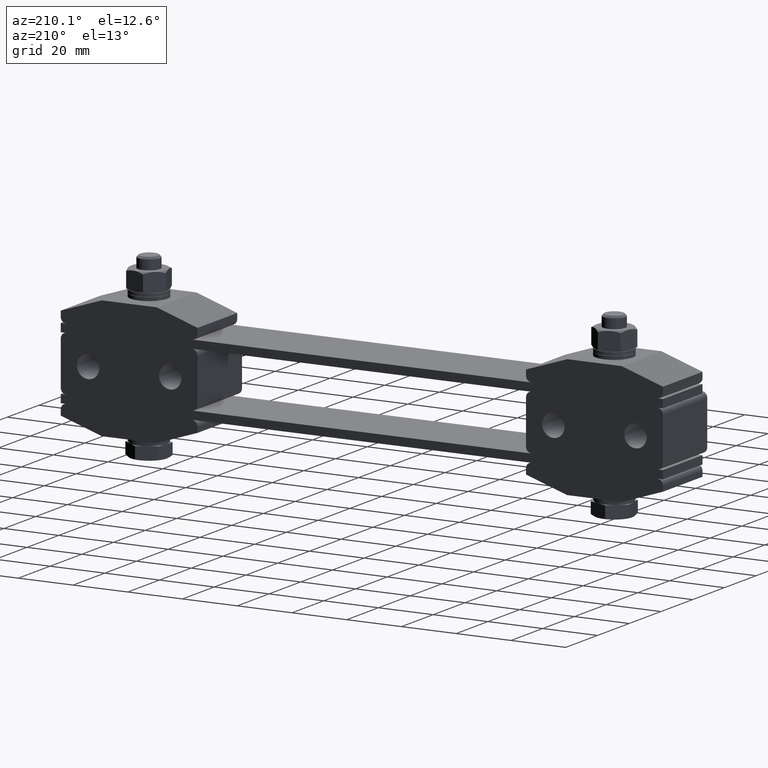
[diagram: clean part render]
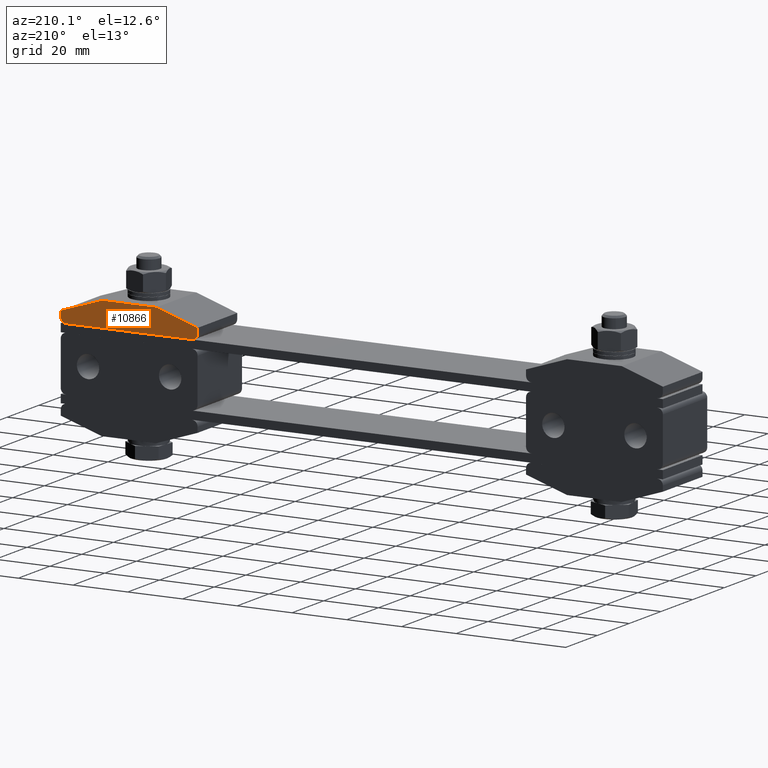
[diagram: same view with one face highlighted and labeled with its STEP entity id]
A machine part, auxiliary view. The second image highlights one B-rep face of the part: STEP entity #10866.
In plain terms, the highlighted planar face has unit normal (-0, -1, -0).
Its self-contained STEP definition (entity closure, byte-faithful):
#204 = EDGE_CURVE ( 'NONE', #17872, #11886, #18376, .T. ) ;
#1331 = EDGE_CURVE ( 'NONE', #9580, #2148, #7273, .T. ) ;
#1335 = CARTESIAN_POINT ( 'NONE',  ( 110.0000000000000000, 12.50000000000000000, 26.00000000000000000 ) ) ;
#1528 = CARTESIAN_POINT ( 'NONE',  ( 62.00000000000000000, 12.50000000000000000, 26.00000000000000000 ) ) ;
#1603 = DIRECTION ( 'NONE',  ( 6.903093623487829500E-031, 1.000000000000000000, -1.078520768856851900E-032 ) ) ;
#2038 = LINE ( 'NONE', #3628, #18457 ) ;
#2056 = CARTESIAN_POINT ( 'NONE',  ( 110.0000000000000000, 12.50000000000000000, 28.00000000000000000 ) ) ;
#2148 = VERTEX_POINT ( 'NONE', #5573 ) ;
#2175 = CARTESIAN_POINT ( 'NONE',  ( 110.0000000000000000, 12.50000000000000000, 30.00000000000000000 ) ) ;
#2279 = DIRECTION ( 'NONE',  ( 1.000000000000000000, 6.903093623487829500E-031, 0.0000000000000000000 ) ) ;
#2371 = LINE ( 'NONE', #4901, #12915 ) ;
#2706 = FACE_OUTER_BOUND ( 'NONE', #3049, .T. ) ;
#2804 = DIRECTION ( 'NONE',  ( 6.903093623487829500E-031, 1.000000000000000000, -1.078520768856851900E-032 ) ) ;
#2943 = DIRECTION ( 'NONE',  ( 0.0000000000000000000, 0.0000000000000000000, 1.000000000000000000 ) ) ;
#3049 = EDGE_LOOP ( 'NONE', ( #16893, #16473, #6870, #9177, #14030, #7237, #4600, #15815 ) ) ;
#3464 = CARTESIAN_POINT ( 'NONE',  ( 111.1999999999999900, 12.50000000000000000, 29.60000000000000100 ) ) ;
#3628 = CARTESIAN_POINT ( 'NONE',  ( 110.0000000000000000, 12.50000000000000000, 35.00000000000000000 ) ) ;
#4070 = AXIS2_PLACEMENT_3D ( 'NONE', #1335, #16019, #6197 ) ;
#4403 = VERTEX_POINT ( 'NONE', #1528 ) ;
#4585 = PLANE ( 'NONE',  #4070 ) ;
#4600 = ORIENTED_EDGE ( 'NONE', *, *, #19543, .F. ) ;
#4901 = CARTESIAN_POINT ( 'NONE',  ( 110.0000000000000000, 12.50000000000000000, 26.00000000000000000 ) ) ;
#5007 = DIRECTION ( 'NONE',  ( 0.0000000000000000000, 0.0000000000000000000, 1.000000000000000000 ) ) ;
#5050 = DIRECTION ( 'NONE',  ( 0.9486832980505139900, 6.985347908292455400E-031, -0.3162277660168375000 ) ) ;
#5573 = CARTESIAN_POINT ( 'NONE',  ( 75.00000000000000000, 12.50000000000000000, 35.00000000000000000 ) ) ;
#6197 = DIRECTION ( 'NONE',  ( 0.0000000000000000000, -1.078520768856851900E-032, 1.000000000000000000 ) ) ;
#6612 = EDGE_CURVE ( 'NONE', #13801, #9580, #19262, .T. ) ;
#6870 = ORIENTED_EDGE ( 'NONE', *, *, #6612, .T. ) ;
#7237 = ORIENTED_EDGE ( 'NONE', *, *, #204, .T. ) ;
#7273 = LINE ( 'NONE', #15626, #17275 ) ;
#7338 = VECTOR ( 'NONE', #5050, 999.9999999999997700 ) ;
#7624 = DIRECTION ( 'NONE',  ( 0.0000000000000000000, -1.078520768856851900E-032, 1.000000000000000000 ) ) ;
#7647 = EDGE_CURVE ( 'NONE', #2148, #17872, #2038, .T. ) ;
#7878 = CARTESIAN_POINT ( 'NONE',  ( 60.00000000000000000, 12.50000000000000000, 28.00000000000000000 ) ) ;
#8699 = AXIS2_PLACEMENT_3D ( 'NONE', #17714, #2804, #2943 ) ;
#8738 = DIRECTION ( 'NONE',  ( 0.0000000000000000000, -1.078520768856851900E-032, 1.000000000000000000 ) ) ;
#9177 = ORIENTED_EDGE ( 'NONE', *, *, #1331, .T. ) ;
#9184 = DIRECTION ( 'NONE',  ( 0.9486832980505139900, 6.871718041573616400E-031, 0.3162277660168375000 ) ) ;
#9580 = VERTEX_POINT ( 'NONE', #20497 ) ;
#10866 = ADVANCED_FACE ( 'NONE', ( #2706 ), #4585, .F. ) ;
#11886 = VERTEX_POINT ( 'NONE', #2175 ) ;
#11954 = CIRCLE ( 'NONE', #8699, 1.999999999999998200 ) ;
#12204 = VECTOR ( 'NONE', #7624, 1000.000000000000000 ) ;
#12365 = VECTOR ( 'NONE', #8738, 1000.000000000000000 ) ;
#12410 = CARTESIAN_POINT ( 'NONE',  ( 95.00000000000000000, 12.50000000000000000, 35.00000000000000000 ) ) ;
#12915 = VECTOR ( 'NONE', #18039, 1000.000000000000000 ) ;
#13073 = EDGE_CURVE ( 'NONE', #16925, #18499, #15482, .T. ) ;
#13089 = CARTESIAN_POINT ( 'NONE',  ( 108.0000000000000000, 12.50000000000000000, 26.00000000000000000 ) ) ;
#13801 = VERTEX_POINT ( 'NONE', #7878 ) ;
#14030 = ORIENTED_EDGE ( 'NONE', *, *, #7647, .T. ) ;
#15482 = CIRCLE ( 'NONE', #18741, 1.999999999999998200 ) ;
#15626 = CARTESIAN_POINT ( 'NONE',  ( 103.8000000000000000, 12.50000000000000000, 44.60000000000000100 ) ) ;
#15815 = ORIENTED_EDGE ( 'NONE', *, *, #13073, .T. ) ;
#16019 = DIRECTION ( 'NONE',  ( -6.903093623487829500E-031, -1.000000000000000000, -1.078520768856851900E-032 ) ) ;
#16415 = CARTESIAN_POINT ( 'NONE',  ( 108.0000000000000000, 12.50000000000000000, 28.00000000000000000 ) ) ;
#16473 = ORIENTED_EDGE ( 'NONE', *, *, #19615, .T. ) ;
#16531 = LINE ( 'NONE', #20764, #12204 ) ;
#16893 = ORIENTED_EDGE ( 'NONE', *, *, #20351, .F. ) ;
#16925 = VERTEX_POINT ( 'NONE', #2056 ) ;
#17275 = VECTOR ( 'NONE', #9184, 999.9999999999997700 ) ;
#17714 = CARTESIAN_POINT ( 'NONE',  ( 62.00000000000000000, 12.50000000000000000, 28.00000000000000000 ) ) ;
#17872 = VERTEX_POINT ( 'NONE', #12410 ) ;
#18039 = DIRECTION ( 'NONE',  ( 1.000000000000000000, 6.903093623487829500E-031, 0.0000000000000000000 ) ) ;
#18376 = LINE ( 'NONE', #3464, #7338 ) ;
#18457 = VECTOR ( 'NONE', #2279, 1000.000000000000000 ) ;
#18499 = VERTEX_POINT ( 'NONE', #13089 ) ;
#18535 = CARTESIAN_POINT ( 'NONE',  ( 60.00000000000000000, 12.50000000000000000, 26.00000000000000000 ) ) ;
#18741 = AXIS2_PLACEMENT_3D ( 'NONE', #16415, #1603, #5007 ) ;
#19262 = LINE ( 'NONE', #18535, #12365 ) ;
#19543 = EDGE_CURVE ( 'NONE', #16925, #11886, #16531, .T. ) ;
#19615 = EDGE_CURVE ( 'NONE', #4403, #13801, #11954, .T. ) ;
#20351 = EDGE_CURVE ( 'NONE', #4403, #18499, #2371, .T. ) ;
#20497 = CARTESIAN_POINT ( 'NONE',  ( 60.00000000000000000, 12.50000000000000000, 30.00000000000000000 ) ) ;
#20764 = CARTESIAN_POINT ( 'NONE',  ( 110.0000000000000000, 12.50000000000000000, 26.00000000000000000 ) ) ;